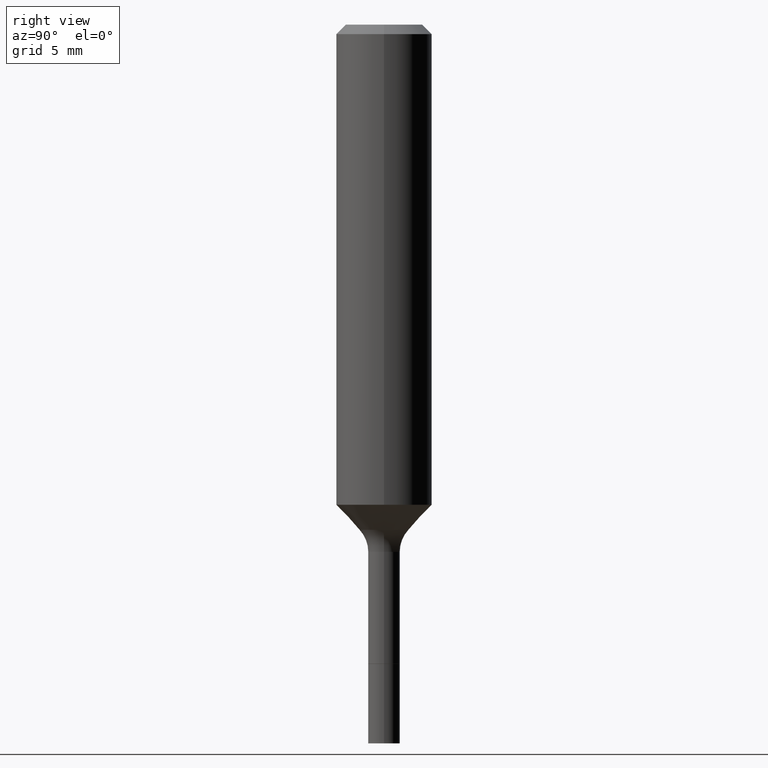
[diagram: clean part render]
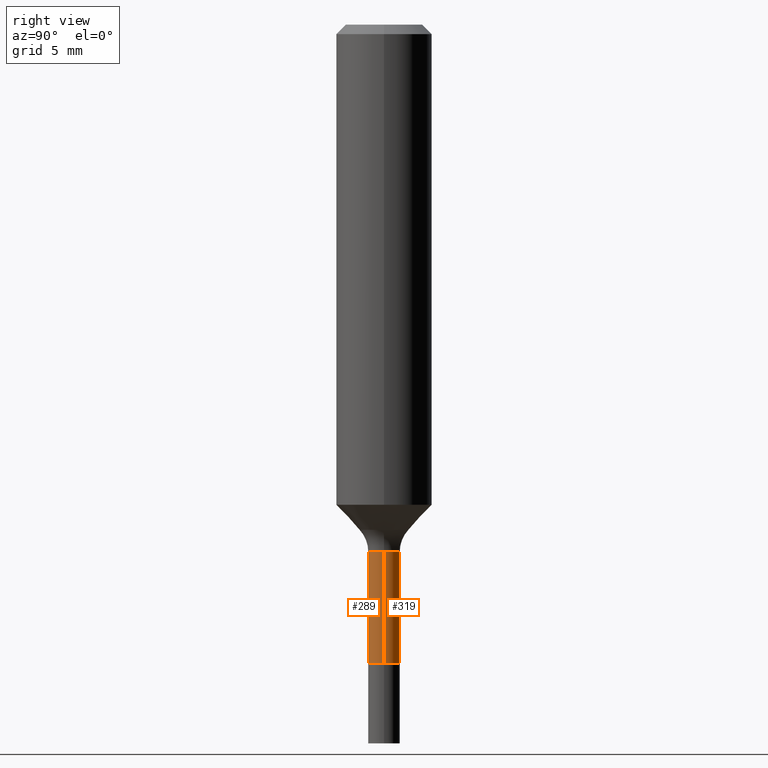
[diagram: same view with one multi-face feature highlighted, each face labeled with its STEP entity id]
A machine part, right view. The highlighted faces form ONE feature: a constant-radius fillet chain: 2 tangent blend faces with common blend radius 0.9919 mm. The faces share edges in the B-rep.
Their STEP definitions:
[1] entity #319 (Cylinder):
#15 = CARTESIAN_POINT ( 'NONE',  ( 3.852102463502827373E-29, -5.499781404945724146E-15, -1.575200000000000156 ) ) ;
#18 = DIRECTION ( 'NONE',  ( 1.000000000000000000, -6.982962677686266711E-15, 0.000000000000000000 ) ) ;
#22 = CARTESIAN_POINT ( 'NONE',  ( 3.178375807398822119E-29, -4.537878296094436237E-15, -1.299700000000000077 ) ) ;
#54 = DIRECTION ( 'NONE',  ( 1.000000000000000000, -6.982962677686267499E-15, 4.876176775795936353E-29 ) ) ;
#61 = DIRECTION ( 'NONE',  ( -2.445468806185136597E-29, 3.491481338843145583E-15, 1.000000000000000000 ) ) ;
#69 = CARTESIAN_POINT ( 'NONE',  ( 0.000000000000000000, 0.000000000000000000, 0.000000000000000000 ) ) ;
#97 = CARTESIAN_POINT ( 'NONE',  ( 0.03904999999999996668, -4.810562988658084561E-15, -1.299700000000000077 ) ) ;
#135 = CIRCLE ( 'NONE', #205, 0.03905000000000000138 ) ;
#140 = VECTOR ( 'NONE', #496, 39.37007874015748143 ) ;
#146 = CARTESIAN_POINT ( 'NONE',  ( 0.03904999999999998056, -2.726846925636486196E-16, 1.904147030948312151E-30 ) ) ;
#149 = CIRCLE ( 'NONE', #491, 0.03904999999999996668 ) ;
#151 = LINE ( 'NONE', #504, #140 ) ;
#155 = CARTESIAN_POINT ( 'NONE',  ( -0.03905000000000000138, -4.741362912205761257E-15, -1.575200000000000156 ) ) ;
#167 = VERTEX_POINT ( 'NONE', #347 ) ;
#171 = ORIENTED_EDGE ( 'NONE', *, *, #359, .T. ) ;
#191 = VERTEX_POINT ( 'NONE', #155 ) ;
#204 = VERTEX_POINT ( 'NONE', #429 ) ;
#205 = AXIS2_PLACEMENT_3D ( 'NONE', #15, #61, #18 ) ;
#231 = CYLINDRICAL_SURFACE ( 'NONE', #318, 0.03904999999999998056 ) ;
#237 = EDGE_CURVE ( 'NONE', #191, #204, #151, .T. ) ;
#242 = EDGE_CURVE ( 'NONE', #294, #204, #149, .T. ) ;
#271 = VECTOR ( 'NONE', #428, 39.37007874015748143 ) ;
#279 = ORIENTED_EDGE ( 'NONE', *, *, #377, .F. ) ;
#294 = VERTEX_POINT ( 'NONE', #97 ) ;
#318 = AXIS2_PLACEMENT_3D ( 'NONE', #69, #457, #54 ) ;
#319 = ADVANCED_FACE ( 'NONE', ( #380 ), #231, .T. ) ;
#320 = ORIENTED_EDGE ( 'NONE', *, *, #242, .F. ) ;
#346 = DIRECTION ( 'NONE',  ( 1.000000000000000000, -6.982962677686273021E-15, 0.000000000000000000 ) ) ;
#347 = CARTESIAN_POINT ( 'NONE',  ( 0.03905000000000000138, -5.772466097509372470E-15, -1.575200000000000156 ) ) ;
#352 = LINE ( 'NONE', #146, #271 ) ;
#359 = EDGE_CURVE ( 'NONE', #167, #191, #135, .T. ) ;
#377 = EDGE_CURVE ( 'NONE', #167, #294, #352, .T. ) ;
#380 = FACE_OUTER_BOUND ( 'NONE', #483, .T. ) ;
#428 = DIRECTION ( 'NONE',  ( -2.445468806185136877E-29, 3.491481338843145188E-15, 1.000000000000000000 ) ) ;
#429 = CARTESIAN_POINT ( 'NONE',  ( -0.03904999999999996668, -4.741362912205761257E-15, -1.299700000000000077 ) ) ;
#457 = DIRECTION ( 'NONE',  ( -2.445468806185136597E-29, 3.491481338843145583E-15, 1.000000000000000000 ) ) ;
#469 = DIRECTION ( 'NONE',  ( -2.445468806185136597E-29, 3.491481338843145583E-15, 1.000000000000000000 ) ) ;
#483 = EDGE_LOOP ( 'NONE', ( #171, #510, #320, #279 ) ) ;
#491 = AXIS2_PLACEMENT_3D ( 'NONE', #22, #469, #346 ) ;
#496 = DIRECTION ( 'NONE',  ( -2.445468806185136877E-29, 3.491481338843145188E-15, 1.000000000000000000 ) ) ;
#504 = CARTESIAN_POINT ( 'NONE',  ( -0.03904999999999998056, 2.774669383143189845E-16, -1.920844152744539937E-30 ) ) ;
#510 = ORIENTED_EDGE ( 'NONE', *, *, #237, .T. ) ;
[2] entity #289 (Cylinder):
#4 = AXIS2_PLACEMENT_3D ( 'NONE', #369, #331, #486 ) ;
#23 = CYLINDRICAL_SURFACE ( 'NONE', #470, 0.03904999999999998056 ) ;
#47 = ORIENTED_EDGE ( 'NONE', *, *, #237, .F. ) ;
#97 = CARTESIAN_POINT ( 'NONE',  ( 0.03904999999999996668, -4.810562988658084561E-15, -1.299700000000000077 ) ) ;
#103 = CARTESIAN_POINT ( 'NONE',  ( 3.178375807398822119E-29, -4.537878296094436237E-15, -1.299700000000000077 ) ) ;
#113 = FACE_OUTER_BOUND ( 'NONE', #173, .T. ) ;
#124 = EDGE_CURVE ( 'NONE', #204, #294, #198, .T. ) ;
#140 = VECTOR ( 'NONE', #496, 39.37007874015748143 ) ;
#146 = CARTESIAN_POINT ( 'NONE',  ( 0.03904999999999998056, -2.726846925636486196E-16, 1.904147030948312151E-30 ) ) ;
#151 = LINE ( 'NONE', #504, #140 ) ;
#155 = CARTESIAN_POINT ( 'NONE',  ( -0.03905000000000000138, -4.741362912205761257E-15, -1.575200000000000156 ) ) ;
#167 = VERTEX_POINT ( 'NONE', #347 ) ;
#173 = EDGE_LOOP ( 'NONE', ( #47, #360, #454, #447 ) ) ;
#191 = VERTEX_POINT ( 'NONE', #155 ) ;
#198 = CIRCLE ( 'NONE', #298, 0.03904999999999996668 ) ;
#204 = VERTEX_POINT ( 'NONE', #429 ) ;
#237 = EDGE_CURVE ( 'NONE', #191, #204, #151, .T. ) ;
#245 = DIRECTION ( 'NONE',  ( -2.445468806185136597E-29, 3.491481338843145583E-15, 1.000000000000000000 ) ) ;
#271 = VECTOR ( 'NONE', #428, 39.37007874015748143 ) ;
#272 = DIRECTION ( 'NONE',  ( -2.445468806185136597E-29, 3.491481338843145583E-15, 1.000000000000000000 ) ) ;
#289 = ADVANCED_FACE ( 'NONE', ( #113 ), #23, .T. ) ;
#294 = VERTEX_POINT ( 'NONE', #97 ) ;
#298 = AXIS2_PLACEMENT_3D ( 'NONE', #103, #245, #340 ) ;
#308 = CARTESIAN_POINT ( 'NONE',  ( 0.000000000000000000, 0.000000000000000000, 0.000000000000000000 ) ) ;
#331 = DIRECTION ( 'NONE',  ( -2.445468806185136597E-29, 3.491481338843145583E-15, 1.000000000000000000 ) ) ;
#340 = DIRECTION ( 'NONE',  ( 1.000000000000000000, -6.982962677686273021E-15, 0.000000000000000000 ) ) ;
#347 = CARTESIAN_POINT ( 'NONE',  ( 0.03905000000000000138, -5.772466097509372470E-15, -1.575200000000000156 ) ) ;
#352 = LINE ( 'NONE', #146, #271 ) ;
#360 = ORIENTED_EDGE ( 'NONE', *, *, #456, .T. ) ;
#369 = CARTESIAN_POINT ( 'NONE',  ( 3.852102463502827373E-29, -5.499781404945724146E-15, -1.575200000000000156 ) ) ;
#377 = EDGE_CURVE ( 'NONE', #167, #294, #352, .T. ) ;
#428 = DIRECTION ( 'NONE',  ( -2.445468806185136877E-29, 3.491481338843145188E-15, 1.000000000000000000 ) ) ;
#429 = CARTESIAN_POINT ( 'NONE',  ( -0.03904999999999996668, -4.741362912205761257E-15, -1.299700000000000077 ) ) ;
#434 = DIRECTION ( 'NONE',  ( 1.000000000000000000, -6.982962677686267499E-15, 4.876176775795936353E-29 ) ) ;
#447 = ORIENTED_EDGE ( 'NONE', *, *, #124, .F. ) ;
#454 = ORIENTED_EDGE ( 'NONE', *, *, #377, .T. ) ;
#456 = EDGE_CURVE ( 'NONE', #191, #167, #500, .T. ) ;
#470 = AXIS2_PLACEMENT_3D ( 'NONE', #308, #272, #434 ) ;
#486 = DIRECTION ( 'NONE',  ( 1.000000000000000000, -6.982962677686266711E-15, 0.000000000000000000 ) ) ;
#496 = DIRECTION ( 'NONE',  ( -2.445468806185136877E-29, 3.491481338843145188E-15, 1.000000000000000000 ) ) ;
#500 = CIRCLE ( 'NONE', #4, 0.03905000000000000138 ) ;
#504 = CARTESIAN_POINT ( 'NONE',  ( -0.03904999999999998056, 2.774669383143189845E-16, -1.920844152744539937E-30 ) ) ;